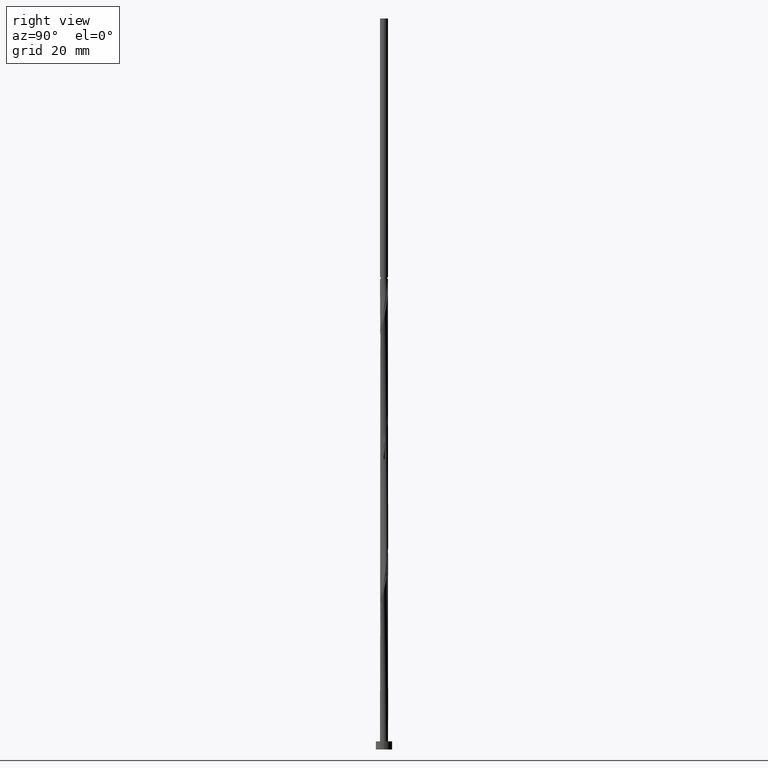
[diagram: clean part render]
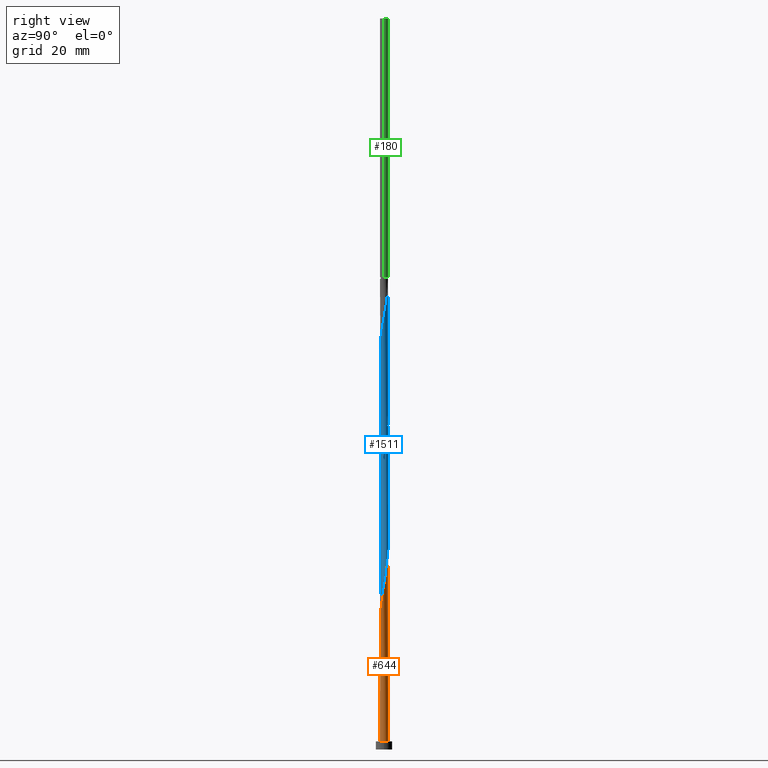
[diagram: same view with three faces highlighted in distinct colors, each labeled with its STEP entity id]
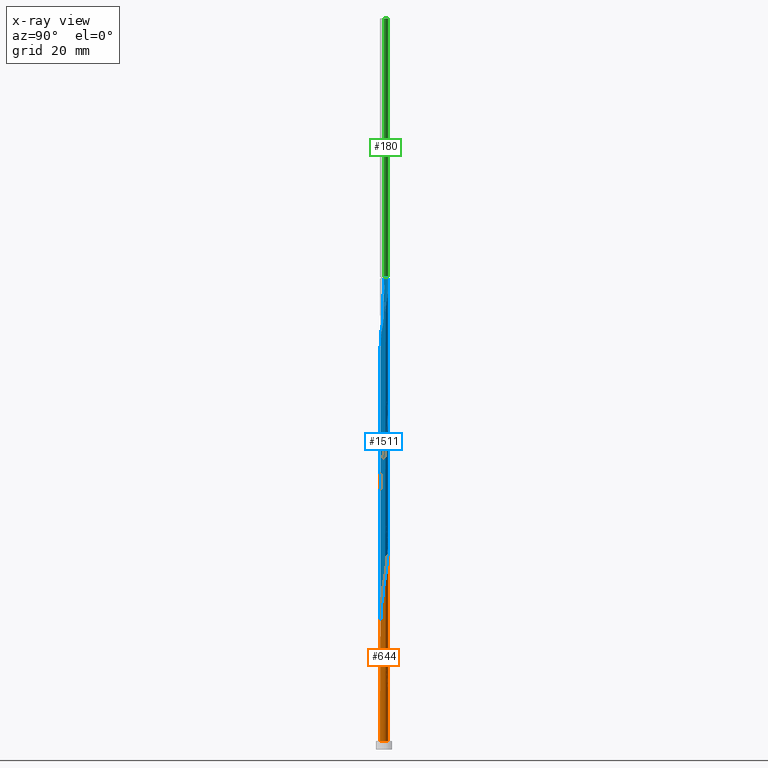
[diagram: x-ray of the same camera — body ghosted, the three highlighted faces saturated]
A machine part, right view with three faces highlighted in distinct colors.
The next image is the same camera in x-ray (body ghosted, the three faces saturated) — at least one of them is partly hidden behind the body in this view.
Their STEP definitions:

[orange] entity #644 — the highlighted cylindrical surface (bore or boss wall) has radius 1 mm, axis along (-0, -0, -1).
#4 = AXIS2_PLACEMENT_3D ( 'NONE', #460, #165, #1165 ) ;
#9 = CARTESIAN_POINT ( 'NONE',  ( -0.6623368793961417200, 0.7492061519980892648, 84.69214483459323617 ) ) ;
#19 = DIRECTION ( 'NONE',  ( -0.000000000000000000, -0.000000000000000000, -1.000000000000000000 ) ) ;
#28 = CARTESIAN_POINT ( 'NONE',  ( -0.8336771183575206745, 0.5522521727681147796, 52.74770039014880041 ) ) ;
#35 = CARTESIAN_POINT ( 'NONE',  ( -0.9981116494354763669, 0.06142585173358004053, 55.52547816792657898 ) ) ;
#41 = CARTESIAN_POINT ( 'NONE',  ( -0.1928297432528356115, 0.9900247826383176131, 17.33103372348212901 ) ) ;
#43 = CARTESIAN_POINT ( 'NONE',  ( 0.7492061519980898199, 0.6623368793961410539, 76.35881150125993599 ) ) ;
#74 = EDGE_CURVE ( 'NONE', #446, #758, #1446, .T. ) ;
#86 = ORIENTED_EDGE ( 'NONE', *, *, #74, .T. ) ;
#93 = CARTESIAN_POINT ( 'NONE',  ( -0.3176631206038603161, -0.9482036394194132134, 29.13658927903768614 ) ) ;
#99 = CARTESIAN_POINT ( 'NONE',  ( 0.06997803978567550265, -1.006198516232635232, 31.21992261237101474 ) ) ;
#107 = CARTESIAN_POINT ( 'NONE',  ( 0.7609717405145317581, -0.6620078475813455654, 35.38658927903767193 ) ) ;
#121 = CARTESIAN_POINT ( 'NONE',  ( 0.9063824962005084807, -0.4424964979548843269, 36.77547816792658608 ) ) ;
#130 = CARTESIAN_POINT ( 'NONE',  ( -0.1989974874213238099, 0.9800000000000015365, 81.91436705681547892 ) ) ;
#134 = CARTESIAN_POINT ( 'NONE',  ( -1.000000000000001332, 0.03074195165767408186, 22.35430338024391617 ) ) ;
#135 = CARTESIAN_POINT ( 'NONE',  ( -1.000000000000001554, 0.03074195165767389104, 89.02097004691059112 ) ) ;
#148 = CARTESIAN_POINT ( 'NONE',  ( -0.8364044564148330752, -0.5637020182777509048, 58.99770039014879330 ) ) ;
#155 = CARTESIAN_POINT ( 'NONE',  ( 0.9900247826383176131, -0.1928297432528361388, 71.49770039014879330 ) ) ;
#165 = DIRECTION ( 'NONE',  ( 0.000000000000000000, 0.000000000000000000, 1.000000000000000000 ) ) ;
#174 = ORIENTED_EDGE ( 'NONE', *, *, #845, .F. ) ;
#190 = CARTESIAN_POINT ( 'NONE',  ( 0.000000000000000000, 0.000000000000000000, 179.0000000000000000 ) ) ;
#206 = CARTESIAN_POINT ( 'NONE',  ( -1.000000000000001554, -2.990756888724011447E-16, 22.51746706827206879 ) ) ;
#207 = CARTESIAN_POINT ( 'NONE',  ( -1.000000000000001554, 3.364601499814512755E-17, 89.18413373493874019 ) ) ;
#213 = EDGE_CURVE ( 'NONE', #1442, #1294, #1134, .T. ) ;
#215 = CARTESIAN_POINT ( 'NONE',  ( 0.6623368793961414980, -0.7492061519980895978, 34.69214483459325038 ) ) ;
#228 = CARTESIAN_POINT ( 'NONE',  ( 0.9482036394194132134, -0.3176631206038603716, 37.46992261237102895 ) ) ;
#236 = CARTESIAN_POINT ( 'NONE',  ( -0.06997803978567486427, 1.006198516232635232, 47.88658927903767903 ) ) ;
#244 = CARTESIAN_POINT ( 'NONE',  ( 0.1928297432528362221, 0.9900247826383176131, 79.83103372348212190 ) ) ;
#252 = CARTESIAN_POINT ( 'NONE',  ( -0.4458594766673616427, 0.8951029700911005138, 16.63658927903767903 ) ) ;
#253 = CARTESIAN_POINT ( 'NONE',  ( -1.000000000000001332, 0.1005037815259216399, 24.11117400950291056 ) ) ;
#256 = CARTESIAN_POINT ( 'NONE',  ( -0.9981116494354763669, 0.06142585173358004053, 88.85881150125990757 ) ) ;
#258 = CARTESIAN_POINT ( 'NONE',  ( -1.000000000000000000, 0.000000000000000000, 179.0000000000000000 ) ) ;
#264 = CARTESIAN_POINT ( 'NONE',  ( -0.5637020182777511268, 0.8364044564148328531, 83.99770039014879330 ) ) ;
#270 = CARTESIAN_POINT ( 'NONE',  ( 0.9063824962005084807, -0.4424964979548843269, 70.10881150125992178 ) ) ;
#280 = CARTESIAN_POINT ( 'NONE',  ( 0.5522521727681148906, 0.8336771183575204525, 77.74770039014883594 ) ) ;
#284 = DIRECTION ( 'NONE',  ( 0.000000000000000000, 1.000000000000000000, -3.122502256758252770E-14 ) ) ;
#305 = EDGE_LOOP ( 'NONE', ( #808, #174, #428, #697, #1040, #1278, #545, #86, #817 ) ) ;
#321 = CARTESIAN_POINT ( 'NONE',  ( -0.3176631206038598165, 0.9482036394194133244, 18.02547816792657187 ) ) ;
#322 = LINE ( 'NONE', #943, #598 ) ;
#331 = CYLINDRICAL_SURFACE ( 'NONE', #866, 1.000000000000000000 ) ;
#337 = CARTESIAN_POINT ( 'NONE',  ( -0.8951029700911006248, -0.4458594766673615317, 24.96992261237102895 ) ) ;
#344 = CARTESIAN_POINT ( 'NONE',  ( -0.5522521727681147796, -0.8336771183575206745, 27.74770039014879330 ) ) ;
#361 = CARTESIAN_POINT ( 'NONE',  ( -1.000000000000001554, -0.1005037815259207934, 23.05089343746132968 ) ) ;
#374 = CARTESIAN_POINT ( 'NONE',  ( -0.8336771183575206745, 0.5522521727681147796, 86.08103372348212190 ) ) ;
#379 = EDGE_CURVE ( 'NONE', #1050, #758, #1018, .T. ) ;
#383 = CARTESIAN_POINT ( 'NONE',  ( -0.9900247826383176131, 0.1928297432528356947, 54.83103372348214322 ) ) ;
#391 = CARTESIAN_POINT ( 'NONE',  ( -0.1928297432528356947, -0.9900247826383176131, 63.16436705681546471 ) ) ;
#399 = CARTESIAN_POINT ( 'NONE',  ( -0.8364044564148329641, 0.5637020182777511268, 21.49770039014879330 ) ) ;
#400 = CARTESIAN_POINT ( 'NONE',  ( 0.9800000000000015365, 0.1989974874213238931, 73.58103372348212190 ) ) ;
#425 = DIRECTION ( 'NONE',  ( -0.000000000000000000, -0.000000000000000000, -1.000000000000000000 ) ) ;
#428 = ORIENTED_EDGE ( 'NONE', *, *, #213, .T. ) ;
#446 = VERTEX_POINT ( 'NONE', #995 ) ;
#452 =( BOUNDED_CURVE ( )  B_SPLINE_CURVE ( 2, ( #1541, #998, #252, #748, #630, #1273, #1128, #873, #1008, #759, #1254, #134, #491 ),
 .UNSPECIFIED., .F., .T. ) 
 B_SPLINE_CURVE_WITH_KNOTS ( ( 3, 2, 2, 2, 2, 2, 3 ),
 ( 0.000000000000000000, 0.01041666666666662966, 0.02083333333333337034, 0.03125000000000000000, 0.04166666666666662966, 0.05208333333333337034, 0.05453176698144630852 ),
 .UNSPECIFIED. ) 
 CURVE ( )  GEOMETRIC_REPRESENTATION_ITEM ( )  RATIONAL_B_SPLINE_CURVE ( ( 0.9090909090909258250, 0.9013135103398444148, 0.9090909090909258250, 0.9013135103398444148, 0.9090909090909258250, 0.9013135103398444148, 0.9090909090909258250, 0.9013135103398444148, 0.9090909090909258250, 0.9013135103398444148, 0.9090909090909258250, 0.9072628343904196591, 0.9062941362546461654 ) ) 
 REPRESENTATION_ITEM ( '' )  );
#460 = CARTESIAN_POINT ( 'NONE',  ( 0.000000000000000000, 0.000000000000000000, 2.000000000000000000 ) ) ;
#465 = CARTESIAN_POINT ( 'NONE',  ( 0.6620078475813460095, 0.7609717405145314251, 43.71992261237101474 ) ) ;
#478 = CARTESIAN_POINT ( 'NONE',  ( 0.9800000000000015365, 0.1989974874213238931, 40.24770039014880751 ) ) ;
#485 = CARTESIAN_POINT ( 'NONE',  ( 0.1928297432528362221, 0.9900247826383176131, 46.49770039014880041 ) ) ;
#491 = CARTESIAN_POINT ( 'NONE',  ( -1.000000000000001554, -2.990756888724011447E-16, 22.51746706827206879 ) ) ;
#492 = CARTESIAN_POINT ( 'NONE',  ( 0.8364044564148332972, 0.5637020182777502386, 42.33103372348212190 ) ) ;
#500 = CARTESIAN_POINT ( 'NONE',  ( -0.7609717405145320912, 0.6620078475813454544, 85.38658927903769325 ) ) ;
#501 = EDGE_CURVE ( 'NONE', #1294, #562, #1365, .T. ) ;
#511 = CARTESIAN_POINT ( 'NONE',  ( -0.8951029700911002918, 0.4458594766673616983, 22.19214483459323972 ) ) ;
#513 = CARTESIAN_POINT ( 'NONE',  ( -0.4458594766673616427, 0.8951029700911005138, 49.96992261237102184 ) ) ;
#522 = CARTESIAN_POINT ( 'NONE',  ( -0.9800000000000015365, 0.1989974874213240874, 23.58103372348212545 ) ) ;
#524 = CARTESIAN_POINT ( 'NONE',  ( 0.4458594766673611987, -0.8951029700911006248, 66.63658927903769325 ) ) ;
#530 = CARTESIAN_POINT ( 'NONE',  ( 0.6623368793961414980, -0.7492061519980895978, 68.02547816792659319 ) ) ;
#545 = ORIENTED_EDGE ( 'NONE', *, *, #1615, .F. ) ;
#556 = DIRECTION ( 'NONE',  ( -0.000000000000000000, -0.000000000000000000, -1.000000000000000000 ) ) ;
#562 = VERTEX_POINT ( 'NONE', #1203 ) ;
#585 = CARTESIAN_POINT ( 'NONE',  ( 0.3280169350569719366, -0.9538014837673677304, 32.60881150125991468 ) ) ;
#587 = CARTESIAN_POINT ( 'NONE',  ( -0.06142585173357986705, 0.9981116494354765889, 16.63658927903767548 ) ) ;
#598 = VECTOR ( 'NONE', #556, 1000.000000000000000 ) ;
#599 = CARTESIAN_POINT ( 'NONE',  ( -1.000000000000001554, -2.990756888724011447E-16, 22.51746706827206879 ) ) ;
#604 = CARTESIAN_POINT ( 'NONE',  ( 1.006198516232635232, 0.06997803978567496141, 39.55325594570432202 ) ) ;
#615 = CARTESIAN_POINT ( 'NONE',  ( -0.8364044564148330752, -0.5637020182777509048, 25.66436705681546826 ) ) ;
#625 = CARTESIAN_POINT ( 'NONE',  ( -0.3280169350569720477, 0.9538014837673677304, 82.60881150125989336 ) ) ;
#630 = CARTESIAN_POINT ( 'NONE',  ( -0.6623368793961417200, 0.7492061519980892648, 18.02547816792657898 ) ) ;
#631 = CARTESIAN_POINT ( 'NONE',  ( -0.9538014837673676194, 0.3280169350569723807, 22.88658927903767548 ) ) ;
#634 = CARTESIAN_POINT ( 'NONE',  ( -0.6620078475813455654, -0.7609717405145317581, 60.38658927903769325 ) ) ;
#641 = CARTESIAN_POINT ( 'NONE',  ( -0.7609717405145320912, 0.6620078475813454544, 52.05325594570435754 ) ) ;
#644 = ADVANCED_FACE ( 'NONE', ( #1453 ), #331, .T. ) ;
#650 = CARTESIAN_POINT ( 'NONE',  ( -0.7492061519980892648, -0.6623368793961414980, 59.69214483459324327 ) ) ;
#660 = CARTESIAN_POINT ( 'NONE',  ( -1.006198516232635232, -0.06997803978567576633, 56.21992261237099342 ) ) ;
#697 = ORIENTED_EDGE ( 'NONE', *, *, #501, .T. ) ;
#707 = CARTESIAN_POINT ( 'NONE',  ( 0.1989974874213244482, 0.9800000000000017586, 15.24770039014879153 ) ) ;
#711 = AXIS2_PLACEMENT_3D ( 'NONE', #1561, #1182, #1445 ) ;
#724 = CARTESIAN_POINT ( 'NONE',  ( -0.7492061519980892648, -0.6623368793961414980, 26.35881150125991468 ) ) ;
#733 = CARTESIAN_POINT ( 'NONE',  ( 0.1989974874213238931, -0.9800000000000015365, 31.91436705681546471 ) ) ;
#748 = CARTESIAN_POINT ( 'NONE',  ( -0.5637020182777511268, 0.8364044564148328531, 17.33103372348213256 ) ) ;
#750 = CARTESIAN_POINT ( 'NONE',  ( 0.06142585173358070666, 0.9981116494354763669, 80.52547816792659319 ) ) ;
#754 = AXIS2_PLACEMENT_3D ( 'NONE', #912, #774, #284 ) ;
#758 = VERTEX_POINT ( 'NONE', #707 ) ;
#759 = CARTESIAN_POINT ( 'NONE',  ( -0.9900247826383176131, 0.1928297432528356947, 21.49770039014879686 ) ) ;
#760 = CARTESIAN_POINT ( 'NONE',  ( -0.9482036394194132134, 0.3176631206038600386, 54.13658927903768614 ) ) ;
#768 = CARTESIAN_POINT ( 'NONE',  ( -0.9482036394194132134, 0.3176631206038600386, 87.46992261237103605 ) ) ;
#769 = EDGE_CURVE ( 'NONE', #562, #1294, #1424, .T. ) ;
#774 = DIRECTION ( 'NONE',  ( 1.964448543275007027E-28, -3.035766082959454067E-14, -1.000000000000000000 ) ) ;
#779 = CARTESIAN_POINT ( 'NONE',  ( 0.9981116494354763669, -0.06142585173358065115, 72.19214483459327880 ) ) ;
#785 = CARTESIAN_POINT ( 'NONE',  ( 0.4424964979548844934, 0.9063824962005087027, 78.44214483459323617 ) ) ;
#808 = ORIENTED_EDGE ( 'NONE', *, *, #1088, .F. ) ;
#817 = ORIENTED_EDGE ( 'NONE', *, *, #379, .F. ) ;
#819 = VERTEX_POINT ( 'NONE', #207 ) ;
#845 = EDGE_CURVE ( 'NONE', #1442, #819, #1022, .T. ) ;
#849 = CARTESIAN_POINT ( 'NONE',  ( 0.4458594766673611987, -0.8951029700911006248, 33.30325594570435754 ) ) ;
#866 = AXIS2_PLACEMENT_3D ( 'NONE', #190, #425, #1193 ) ;
#867 = CARTESIAN_POINT ( 'NONE',  ( -0.9800000000000015365, -0.1989974874213240041, 23.58103372348212545 ) ) ;
#873 = CARTESIAN_POINT ( 'NONE',  ( -0.9063824962005088137, 0.4424964979548841604, 20.10881150125989691 ) ) ;
#875 = CARTESIAN_POINT ( 'NONE',  ( -0.4424964979548842714, -0.9063824962005088137, 61.77547816792656477 ) ) ;
#884 = CARTESIAN_POINT ( 'NONE',  ( -0.9063824962005088137, 0.4424964979548841604, 86.77547816792659319 ) ) ;
#893 = CARTESIAN_POINT ( 'NONE',  ( 0.9482036394194132134, -0.3176631206038603716, 70.80325594570436465 ) ) ;
#901 = CARTESIAN_POINT ( 'NONE',  ( 0.8336771183575202304, -0.5522521727681152237, 69.41436705681547892 ) ) ;
#908 = CARTESIAN_POINT ( 'NONE',  ( 0.8364044564148332972, 0.5637020182777502386, 75.66436705681545050 ) ) ;
#912 = CARTESIAN_POINT ( 'NONE',  ( 0.000000000000000000, 0.000000000000000000, 15.24770039014883238 ) ) ;
#937 = VECTOR ( 'NONE', #19, 1000.000000000000000 ) ;
#943 = CARTESIAN_POINT ( 'NONE',  ( -1.000000000000000000, 0.000000000000000000, 179.0000000000000000 ) ) ;
#964 = CARTESIAN_POINT ( 'NONE',  ( -0.4424964979548842714, -0.9063824962005088137, 28.44214483459324683 ) ) ;
#969 = CARTESIAN_POINT ( 'NONE',  ( -0.9538014837673677304, -0.3280169350569719366, 24.27547816792656121 ) ) ;
#974 = CARTESIAN_POINT ( 'NONE',  ( 0.5522521727681148906, 0.8336771183575204525, 44.41436705681546471 ) ) ;
#983 = CARTESIAN_POINT ( 'NONE',  ( 0.06142585173358070666, 0.9981116494354763669, 47.19214483459324327 ) ) ;
#995 = CARTESIAN_POINT ( 'NONE',  ( -0.1989974874213238931, 0.9800000000000015365, 15.24770039014879153 ) ) ;
#998 = CARTESIAN_POINT ( 'NONE',  ( -0.3280169350569720477, 0.9538014837673677304, 15.94214483459323262 ) ) ;
#999 = CARTESIAN_POINT ( 'NONE',  ( -1.000000000000001554, 6.205820544102393468E-16, 24.64460037869219278 ) ) ;
#1001 = CARTESIAN_POINT ( 'NONE',  ( 0.1989974874213238931, -0.9800000000000015365, 65.24770039014880751 ) ) ;
#1008 = CARTESIAN_POINT ( 'NONE',  ( -0.9482036394194132134, 0.3176631206038600386, 20.80325594570435754 ) ) ;
#1011 = CARTESIAN_POINT ( 'NONE',  ( -0.3280169350569720477, 0.9538014837673677304, 49.27547816792657898 ) ) ;
#1016 = CARTESIAN_POINT ( 'NONE',  ( 0.5637020182777502386, -0.8364044564148332972, 67.33103372348210769 ) ) ;
#1018 =( BOUNDED_CURVE ( )  B_SPLINE_CURVE ( 2, ( #999, #253, #522, #631, #511, #399, #1116, #1028, #1084, #1605, #321, #41, #587, #1057, #1503 ),
 .UNSPECIFIED., .F., .T. ) 
 B_SPLINE_CURVE_WITH_KNOTS ( ( 3, 2, 2, 2, 2, 2, 2, 3 ),
 ( 0.9295317669814463502, 0.9375000000000000000, 0.9479166666666666297, 0.9583333333333333703, 0.9687500000000000000, 0.9791666666666666297, 0.9895833333333333703, 1.000000000000000000 ),
 .UNSPECIFIED. ) 
 CURVE ( )  GEOMETRIC_REPRESENTATION_ITEM ( )  RATIONAL_B_SPLINE_CURVE ( ( 0.9062941362546362845, 0.9031415850403408108, 0.9090909090909159440, 0.9013135103398346448, 0.9090909090909159440, 0.9013135103398346448, 0.9090909090909159440, 0.9013135103398346448, 0.9090909090909159440, 0.9013135103398346448, 0.9090909090909159440, 0.9013135103398346448, 0.9090909090909159440, 0.9013135103398346448, 0.9090909090909159440 ) ) 
 REPRESENTATION_ITEM ( '' )  );
#1022 =( BOUNDED_CURVE ( )  B_SPLINE_CURVE ( 2, ( #599, #361, #867, #969, #337, #615, #724, #1484, #344, #964, #93, #1223, #1618, #99, #733, #585, #849, #1345, #215, #107, #1100, #121, #228, #1631, #1367, #604, #478, #1339, #1089, #492, #1232, #465, #974, #1479, #1623, #485, #983, #236, #1117, #1011, #513, #1528, #1286, #641, #28, #1536, #760, #383, #35, #660, #1141, #1146, #1544, #148, #650, #634, #1033, #875, #1154, #391, #1550, #1404, #1001, #1374, #524, #1016, #530, #1275, #901, #270, #893, #155, #779, #1030, #400, #1257, #1396, #908, #43, #1416, #280, #785, #1519, #244, #750, #1246, #130, #625, #1123, #264, #9, #500, #374, #884, #768, #1387, #256, #135, #1130 ),
 .UNSPECIFIED., .F., .T. ) 
 B_SPLINE_CURVE_WITH_KNOTS ( ( 3, 2, 2, 2, 2, 2, 2, 2, 2, 2, 2, 2, 2, 2, 2, 2, 2, 2, 2, 2, 2, 2, 2, 2, 2, 2, 2, 2, 2, 2, 2, 2, 2, 2, 2, 2, 2, 2, 2, 2, 2, 2, 2, 2, 2, 2, 2, 2, 2, 3 ),
 ( 0.05453176698144630852, 0.06250000000000000000, 0.07291666666666662966, 0.08333333333333337034, 0.09375000000000000000, 0.1041666666666666297, 0.1145833333333333703, 0.1250000000000000000, 0.1354166666666666297, 0.1458333333333333703, 0.1562500000000000000, 0.1666666666666666297, 0.1770833333333333703, 0.1875000000000000000, 0.1979166666666666297, 0.2083333333333333703, 0.2187500000000000000, 0.2291666666666666297, 0.2395833333333333703, 0.2500000000000000000, 0.2604166666666666297, 0.2708333333333333703, 0.2812500000000000000, 0.2916666666666666297, 0.3020833333333333703, 0.3125000000000000000, 0.3229166666666666297, 0.3333333333333333703, 0.3437500000000000000, 0.3541666666666666297, 0.3645833333333333703, 0.3750000000000000000, 0.3854166666666666297, 0.3958333333333333703, 0.4062500000000000000, 0.4166666666666666297, 0.4270833333333333703, 0.4375000000000000000, 0.4479166666666666297, 0.4583333333333333703, 0.4687500000000000000, 0.4791666666666666297, 0.4895833333333333703, 0.5000000000000000000, 0.5104166666666667407, 0.5208333333333332593, 0.5312500000000000000, 0.5416666666666667407, 0.5520833333333332593, 0.5545317669814462391 ),
 .UNSPECIFIED. ) 
 CURVE ( )  GEOMETRIC_REPRESENTATION_ITEM ( )  RATIONAL_B_SPLINE_CURVE ( ( 0.9062941362546461654, 0.9031415850403505807, 0.9090909090909258250, 0.9013135103398444148, 0.9090909090909258250, 0.9013135103398444148, 0.9090909090909258250, 0.9013135103398444148, 0.9090909090909258250, 0.9013135103398444148, 0.9090909090909258250, 0.9013135103398444148, 0.9090909090909258250, 0.9013135103398444148, 0.9090909090909258250, 0.9013135103398444148, 0.9090909090909258250, 0.9013135103398444148, 0.9090909090909258250, 0.9013135103398444148, 0.9090909090909258250, 0.9013135103398444148, 0.9090909090909258250, 0.9013135103398444148, 0.9090909090909258250, 0.9013135103398444148, 0.9090909090909258250, 0.9013135103398444148, 0.9090909090909258250, 0.9013135103398444148, 0.9090909090909258250, 0.9013135103398444148, 0.9090909090909258250, 0.9013135103398444148, 0.9090909090909258250, 0.9013135103398444148, 0.9090909090909258250, 0.9013135103398444148, 0.9090909090909258250, 0.9013135103398444148, 0.9090909090909258250, 0.9013135103398444148, 0.9090909090909258250, 0.9013135103398444148, 0.9090909090909258250, 0.9013135103398444148, 0.9090909090909258250, 0.9013135103398444148, 0.9090909090909258250, 0.9013135103398444148, 0.9090909090909258250, 0.9013135103398444148, 0.9090909090909258250, 0.9013135103398444148, 0.9090909090909258250, 0.9013135103398444148, 0.9090909090909258250, 0.9013135103398444148, 0.9090909090909258250, 0.9013135103398444148, 0.9090909090909258250, 0.9013135103398444148, 0.9090909090909258250, 0.9013135103398444148, 0.9090909090909258250, 0.9013135103398444148, 0.9090909090909258250, 0.9013135103398444148, 0.9090909090909258250, 0.9013135103398444148, 0.9090909090909258250, 0.9013135103398444148, 0.9090909090909258250, 0.9013135103398444148, 0.9090909090909258250, 0.9013135103398444148, 0.9090909090909258250, 0.9013135103398444148, 0.9090909090909258250, 0.9013135103398444148, 0.9090909090909258250, 0.9013135103398444148, 0.9090909090909258250, 0.9013135103398444148, 0.9090909090909258250, 0.9013135103398444148, 0.9090909090909258250, 0.9013135103398444148, 0.9090909090909258250, 0.9013135103398444148, 0.9090909090909258250, 0.9013135103398444148, 0.9090909090909258250, 0.9013135103398444148, 0.9090909090909258250, 0.9013135103398444148, 0.9090909090909258250, 0.9072628343904196591, 0.9062941362546462765 ) ) 
 REPRESENTATION_ITEM ( '' )  );
#1028 = CARTESIAN_POINT ( 'NONE',  ( -0.6620078475813452323, 0.7609717405145320912, 20.10881150125989336 ) ) ;
#1030 = CARTESIAN_POINT ( 'NONE',  ( 1.006198516232635232, 0.06997803978567496141, 72.88658927903769325 ) ) ;
#1033 = CARTESIAN_POINT ( 'NONE',  ( -0.5522521727681147796, -0.8336771183575206745, 61.08103372348214322 ) ) ;
#1040 = ORIENTED_EDGE ( 'NONE', *, *, #769, .T. ) ;
#1050 = VERTEX_POINT ( 'NONE', #1079 ) ;
#1057 = CARTESIAN_POINT ( 'NONE',  ( 0.06997803978567590510, 1.006198516232635010, 15.94214483459322906 ) ) ;
#1079 = CARTESIAN_POINT ( 'NONE',  ( -1.000000000000001554, 6.205820544102392482E-16, 24.64460037869219278 ) ) ;
#1084 = CARTESIAN_POINT ( 'NONE',  ( -0.5522521727681148906, 0.8336771183575207855, 19.41436705681545760 ) ) ;
#1088 = EDGE_CURVE ( 'NONE', #819, #1050, #322, .T. ) ;
#1089 = CARTESIAN_POINT ( 'NONE',  ( 0.8951029700911006248, 0.4458594766673611987, 41.63658927903768614 ) ) ;
#1100 = CARTESIAN_POINT ( 'NONE',  ( 0.8336771183575202304, -0.5522521727681152237, 36.08103372348214322 ) ) ;
#1116 = CARTESIAN_POINT ( 'NONE',  ( -0.7492061519980892648, 0.6623368793961417200, 20.80325594570435044 ) ) ;
#1117 = CARTESIAN_POINT ( 'NONE',  ( -0.1989974874213238099, 0.9800000000000015365, 48.58103372348213611 ) ) ;
#1123 = CARTESIAN_POINT ( 'NONE',  ( -0.4458594766673616427, 0.8951029700911005138, 83.30325594570435044 ) ) ;
#1128 = CARTESIAN_POINT ( 'NONE',  ( -0.8336771183575206745, 0.5522521727681147796, 19.41436705681545760 ) ) ;
#1130 = CARTESIAN_POINT ( 'NONE',  ( -1.000000000000001554, 3.364601499814512755E-17, 89.18413373493874019 ) ) ;
#1134 = LINE ( 'NONE', #258, #937 ) ;
#1141 = CARTESIAN_POINT ( 'NONE',  ( -0.9800000000000015365, -0.1989974874213240041, 56.91436705681547181 ) ) ;
#1146 = CARTESIAN_POINT ( 'NONE',  ( -0.9538014837673677304, -0.3280169350569719366, 57.60881150125990757 ) ) ;
#1154 = CARTESIAN_POINT ( 'NONE',  ( -0.3176631206038603161, -0.9482036394194132134, 62.46992261237102895 ) ) ;
#1165 = DIRECTION ( 'NONE',  ( 1.000000000000000000, 0.000000000000000000, 0.000000000000000000 ) ) ;
#1182 = DIRECTION ( 'NONE',  ( 0.000000000000000000, 0.000000000000000000, 1.000000000000000000 ) ) ;
#1193 = DIRECTION ( 'NONE',  ( -1.000000000000000000, 0.000000000000000000, 0.000000000000000000 ) ) ;
#1203 = CARTESIAN_POINT ( 'NONE',  ( 1.000000000000000000, 0.000000000000000000, 2.000000000000000000 ) ) ;
#1223 = CARTESIAN_POINT ( 'NONE',  ( -0.1928297432528356947, -0.9900247826383176131, 29.83103372348212901 ) ) ;
#1232 = CARTESIAN_POINT ( 'NONE',  ( 0.7492061519980898199, 0.6623368793961410539, 43.02547816792657187 ) ) ;
#1246 = CARTESIAN_POINT ( 'NONE',  ( -0.06997803978567486427, 1.006198516232635232, 81.21992261237100763 ) ) ;
#1254 = CARTESIAN_POINT ( 'NONE',  ( -0.9981116494354763669, 0.06142585173358004053, 22.19214483459324683 ) ) ;
#1257 = CARTESIAN_POINT ( 'NONE',  ( 0.9538014837673677304, 0.3280169350569718256, 74.27547816792657898 ) ) ;
#1273 = CARTESIAN_POINT ( 'NONE',  ( -0.7609717405145320912, 0.6620078475813454544, 18.71992261237101474 ) ) ;
#1275 = CARTESIAN_POINT ( 'NONE',  ( 0.7609717405145317581, -0.6620078475813455654, 68.71992261237103605 ) ) ;
#1278 = ORIENTED_EDGE ( 'NONE', *, *, #213, .F. ) ;
#1286 = CARTESIAN_POINT ( 'NONE',  ( -0.6623368793961417200, 0.7492061519980892648, 51.35881150125992178 ) ) ;
#1294 = VERTEX_POINT ( 'NONE', #1610 ) ;
#1339 = CARTESIAN_POINT ( 'NONE',  ( 0.9538014837673677304, 0.3280169350569718256, 40.94214483459323617 ) ) ;
#1345 = CARTESIAN_POINT ( 'NONE',  ( 0.5637020182777502386, -0.8364044564148332972, 33.99770039014878620 ) ) ;
#1365 = CIRCLE ( 'NONE', #711, 1.000000000000000000 ) ;
#1367 = CARTESIAN_POINT ( 'NONE',  ( 0.9981116494354763669, -0.06142585173358065115, 38.85881150125992178 ) ) ;
#1374 = CARTESIAN_POINT ( 'NONE',  ( 0.3280169350569719366, -0.9538014837673677304, 65.94214483459322196 ) ) ;
#1387 = CARTESIAN_POINT ( 'NONE',  ( -0.9900247826383176131, 0.1928297432528356947, 88.16436705681545050 ) ) ;
#1396 = CARTESIAN_POINT ( 'NONE',  ( 0.8951029700911006248, 0.4458594766673611987, 74.96992261237102184 ) ) ;
#1404 = CARTESIAN_POINT ( 'NONE',  ( 0.06997803978567550265, -1.006198516232635232, 64.55325594570435044 ) ) ;
#1416 = CARTESIAN_POINT ( 'NONE',  ( 0.6620078475813460095, 0.7609717405145314251, 77.05325594570433623 ) ) ;
#1424 = CIRCLE ( 'NONE', #4, 1.000000000000000000 ) ;
#1442 = VERTEX_POINT ( 'NONE', #206 ) ;
#1445 = DIRECTION ( 'NONE',  ( 1.000000000000000000, 0.000000000000000000, 0.000000000000000000 ) ) ;
#1446 = CIRCLE ( 'NONE', #754, 1.000000000000000000 ) ;
#1453 = FACE_OUTER_BOUND ( 'NONE', #305, .T. ) ;
#1479 = CARTESIAN_POINT ( 'NONE',  ( 0.4424964979548844934, 0.9063824962005087027, 45.10881150125990757 ) ) ;
#1484 = CARTESIAN_POINT ( 'NONE',  ( -0.6620078475813455654, -0.7609717405145317581, 27.05325594570433978 ) ) ;
#1503 = CARTESIAN_POINT ( 'NONE',  ( 0.1989974874213244482, 0.9800000000000017586, 15.24770039014879330 ) ) ;
#1519 = CARTESIAN_POINT ( 'NONE',  ( 0.3176631206038603716, 0.9482036394194129914, 79.13658927903772167 ) ) ;
#1528 = CARTESIAN_POINT ( 'NONE',  ( -0.5637020182777511268, 0.8364044564148328531, 50.66436705681545050 ) ) ;
#1536 = CARTESIAN_POINT ( 'NONE',  ( -0.9063824962005088137, 0.4424964979548841604, 53.44214483459322906 ) ) ;
#1541 = CARTESIAN_POINT ( 'NONE',  ( -0.1989974874213238931, 0.9800000000000015365, 15.24770039014879153 ) ) ;
#1544 = CARTESIAN_POINT ( 'NONE',  ( -0.8951029700911006248, -0.4458594766673615317, 58.30325594570434333 ) ) ;
#1550 = CARTESIAN_POINT ( 'NONE',  ( -0.06142585173358009604, -0.9981116494354763669, 63.85881150125992178 ) ) ;
#1561 = CARTESIAN_POINT ( 'NONE',  ( 0.000000000000000000, 0.000000000000000000, 2.000000000000000000 ) ) ;
#1605 = CARTESIAN_POINT ( 'NONE',  ( -0.4424964979548839938, 0.9063824962005090358, 18.71992261237100763 ) ) ;
#1610 = CARTESIAN_POINT ( 'NONE',  ( -1.000000000000000000, 0.000000000000000000, 2.000000000000000000 ) ) ;
#1615 = EDGE_CURVE ( 'NONE', #446, #1442, #452, .T. ) ;
#1618 = CARTESIAN_POINT ( 'NONE',  ( -0.06142585173358009604, -0.9981116494354763669, 30.52547816792657542 ) ) ;
#1623 = CARTESIAN_POINT ( 'NONE',  ( 0.3176631206038603716, 0.9482036394194129914, 45.80325594570435754 ) ) ;
#1631 = CARTESIAN_POINT ( 'NONE',  ( 0.9900247826383176131, -0.1928297432528361388, 38.16436705681546471 ) ) ;

[blue] entity #1511 — the highlighted cylindrical surface (bore or boss wall) has radius 1 mm, axis along (-0, -0, -1).
#11 = CARTESIAN_POINT ( 'NONE',  ( 0.4424964979548838273, -0.9063824962005091468, 35.38658927903767193 ) ) ;
#18 = CARTESIAN_POINT ( 'NONE',  ( -0.8336771183575206745, -0.5522521727681148906, 27.74770039014878975 ) ) ;
#30 = CARTESIAN_POINT ( 'NONE',  ( -0.9981116494354765889, -0.06142585173357974215, 24.96992261237102184 ) ) ;
#38 = CARTESIAN_POINT ( 'NONE',  ( -0.1928297432528356115, 0.9900247826383176131, 50.66436705681545050 ) ) ;
#44 = ORIENTED_EDGE ( 'NONE', *, *, #797, .F. ) ;
#45 = CARTESIAN_POINT ( 'NONE',  ( -0.4458594766673618093, -0.8951029700911002918, 63.85881150125990757 ) ) ;
#50 = CARTESIAN_POINT ( 'NONE',  ( -0.5522521727681147796, -0.8336771183575206745, 94.41436705681547892 ) ) ;
#52 = CIRCLE ( 'NONE', #1386, 0.9999999999999978906 ) ;
#69 = CARTESIAN_POINT ( 'NONE',  ( -0.8951029700911006248, -0.4458594766673615317, 91.63658927903769325 ) ) ;
#80 = CARTESIAN_POINT ( 'NONE',  ( 0.9800000000000015365, 0.1989974874213238931, 106.9143670568154789 ) ) ;
#109 = CARTESIAN_POINT ( 'NONE',  ( 1.000000000000001110, -0.1005037815259231387, 74.11117400950291767 ) ) ;
#113 = CARTESIAN_POINT ( 'NONE',  ( 0.7609717405145325353, 0.6620078475813446772, 78.44214483459320775 ) ) ;
#120 = FACE_OUTER_BOUND ( 'NONE', #1221, .T. ) ;
#136 = EDGE_CURVE ( 'NONE', #1300, #518, #52, .T. ) ;
#137 = CARTESIAN_POINT ( 'NONE',  ( -0.1989974874213241707, -0.9800000000000015365, 31.91436705681546115 ) ) ;
#143 = CARTESIAN_POINT ( 'NONE',  ( 0.06142585173357947154, -0.9981116494354765889, 33.30325594570435754 ) ) ;
#151 = CARTESIAN_POINT ( 'NONE',  ( -0.3176631206038598165, 0.9482036394194133244, 51.35881150125991468 ) ) ;
#157 = CARTESIAN_POINT ( 'NONE',  ( -0.7609717405145323132, -0.6620078475813451213, 61.77547816792655766 ) ) ;
#158 = DIRECTION ( 'NONE',  ( -1.000000000000000000, 0.000000000000000000, 0.000000000000000000 ) ) ;
#163 = CARTESIAN_POINT ( 'NONE',  ( 0.4424964979548844934, 0.9063824962005087027, 111.7754781679265790 ) ) ;
#164 = VERTEX_POINT ( 'NONE', #1004 ) ;
#170 = CARTESIAN_POINT ( 'NONE',  ( -0.7492061519980892648, -0.6623368793961414980, 93.02547816792656477 ) ) ;
#171 = CARTESIAN_POINT ( 'NONE',  ( -0.8951029700911002918, 0.4458594766673616983, 88.85881150125989336 ) ) ;
#178 = VECTOR ( 'NONE', #565, 1000.000000000000000 ) ;
#181 = CARTESIAN_POINT ( 'NONE',  ( -0.1989974874213510658, 0.9800000000002734302, 115.2477003901487933 ) ) ;
#189 = CARTESIAN_POINT ( 'NONE',  ( 0.9981116494354763669, -0.06142585173358065115, 105.5254781679265932 ) ) ;
#198 = CARTESIAN_POINT ( 'NONE',  ( -0.3176631206038603161, -0.9482036394194132134, 95.80325594570436465 ) ) ;
#207 = CARTESIAN_POINT ( 'NONE',  ( -1.000000000000001554, 3.364601499814512755E-17, 89.18413373493874019 ) ) ;
#214 = DIRECTION ( 'NONE',  ( -0.000000000000000000, -0.000000000000000000, -1.000000000000000000 ) ) ;
#222 = CARTESIAN_POINT ( 'NONE',  ( 0.8336771183575207855, 0.5522521727681147796, 77.74770039014882173 ) ) ;
#232 = CARTESIAN_POINT ( 'NONE',  ( 0.5522521727681144466, -0.8336771183575207855, 69.41436705681545050 ) ) ;
#247 = DIRECTION ( 'NONE',  ( -0.000000000000000000, -0.000000000000000000, -1.000000000000000000 ) ) ;
#257 = CARTESIAN_POINT ( 'NONE',  ( 0.1928297432528350286, -0.9900247826383176131, 33.99770039014877909 ) ) ;
#265 = CARTESIAN_POINT ( 'NONE',  ( -0.9800000000000015365, 0.1989974874213240874, 56.91436705681547181 ) ) ;
#273 = CARTESIAN_POINT ( 'NONE',  ( 0.1928297432528350286, -0.9900247826383176131, 67.33103372348209348 ) ) ;
#283 = CARTESIAN_POINT ( 'NONE',  ( -0.7492061519980892648, 0.6623368793961417200, 54.13658927903767903 ) ) ;
#293 = CARTESIAN_POINT ( 'NONE',  ( -0.5522521727681148906, 0.8336771183575207855, 52.74770039014880041 ) ) ;
#300 = CARTESIAN_POINT ( 'NONE',  ( -0.9800000000000015365, 0.1989974874213240874, 90.24770039014879330 ) ) ;
#307 = CARTESIAN_POINT ( 'NONE',  ( 0.1989974874213238931, -0.9800000000000015365, 98.58103372348215032 ) ) ;
#317 = CARTESIAN_POINT ( 'NONE',  ( 0.9900247826383176131, -0.1928297432528361388, 104.8310337234820935 ) ) ;
#322 = LINE ( 'NONE', #943, #598 ) ;
#352 = CARTESIAN_POINT ( 'NONE',  ( -0.3176631206038598165, 0.9482036394194133244, 84.69214483459323617 ) ) ;
#366 = CARTESIAN_POINT ( 'NONE',  ( -0.06142585173357986705, 0.9981116494354765889, 83.30325594570436465 ) ) ;
#376 = CARTESIAN_POINT ( 'NONE',  ( 0.6623368793961420531, 0.7492061519980888207, 45.80325594570436465 ) ) ;
#384 = CARTESIAN_POINT ( 'NONE',  ( -0.5637020182777512378, -0.8364044564148329641, 29.83103372348212190 ) ) ;
#392 = CARTESIAN_POINT ( 'NONE',  ( -0.1989974874213241707, -0.9800000000000015365, 65.24770039014880751 ) ) ;
#403 = CARTESIAN_POINT ( 'NONE',  ( 0.9063824962005091468, 0.4424964979548831612, 43.71992261237099342 ) ) ;
#412 = CARTESIAN_POINT ( 'NONE',  ( 0.8364044564148332972, 0.5637020182777502386, 108.9977003901488075 ) ) ;
#415 = CARTESIAN_POINT ( 'NONE',  ( 0.9482036394194133244, 0.3176631206038592614, 43.02547816792656477 ) ) ;
#422 = CARTESIAN_POINT ( 'NONE',  ( 0.06142585173358070666, 0.9981116494354763669, 113.8588115012599360 ) ) ;
#430 = CARTESIAN_POINT ( 'NONE',  ( -0.4424964979548842714, -0.9063824962005088137, 95.10881150125990757 ) ) ;
#432 = CARTESIAN_POINT ( 'NONE',  ( -1.000000000000001554, 6.205820544102393468E-16, 24.64460037869219278 ) ) ;
#439 = ORIENTED_EDGE ( 'NONE', *, *, #1132, .F. ) ;
#440 = CARTESIAN_POINT ( 'NONE',  ( -1.000000000000000000, 0.000000000000000000, 179.0000000000000000 ) ) ;
#448 = LINE ( 'NONE', #440, #178 ) ;
#459 = EDGE_CURVE ( 'NONE', #164, #1050, #859, .T. ) ;
#464 = CARTESIAN_POINT ( 'NONE',  ( 1.000000000000000000, 1.224646799147353207E-16, 179.0000000000000000 ) ) ;
#472 = CARTESIAN_POINT ( 'NONE',  ( 0.9900247826383176131, 0.1928297432528349453, 75.66436705681545050 ) ) ;
#480 = CARTESIAN_POINT ( 'NONE',  ( 0.8364044564148326311, -0.5637020182777513488, 71.49770039014877909 ) ) ;
#502 = CARTESIAN_POINT ( 'NONE',  ( 0.3176631206038595390, -0.9482036394194133244, 34.69214483459323617 ) ) ;
#508 = CARTESIAN_POINT ( 'NONE',  ( -0.9063824962005091468, -0.4424964979548838273, 27.05325594570434333 ) ) ;
#515 = CARTESIAN_POINT ( 'NONE',  ( -0.6620078475813452323, 0.7609717405145320912, 53.44214483459322196 ) ) ;
#518 = VERTEX_POINT ( 'NONE', #181 ) ;
#525 = CARTESIAN_POINT ( 'NONE',  ( 0.4458594766673623089, 0.8951029700911000697, 47.19214483459322906 ) ) ;
#532 = CARTESIAN_POINT ( 'NONE',  ( 0.8951029700911000697, -0.4458594766673623089, 38.85881150125990757 ) ) ;
#539 = CARTESIAN_POINT ( 'NONE',  ( 0.5522521727681148906, 0.8336771183575204525, 111.0810337234821787 ) ) ;
#541 = CARTESIAN_POINT ( 'NONE',  ( -1.000000000000001554, 2.878603505396892227E-16, 91.31126704535886063 ) ) ;
#555 = ORIENTED_EDGE ( 'NONE', *, *, #1103, .F. ) ;
#556 = DIRECTION ( 'NONE',  ( -0.000000000000000000, -0.000000000000000000, -1.000000000000000000 ) ) ;
#565 = DIRECTION ( 'NONE',  ( -0.000000000000000000, -0.000000000000000000, -1.000000000000000000 ) ) ;
#567 = CARTESIAN_POINT ( 'NONE',  ( 1.000000000000000000, 1.224646799147353207E-16, 115.2477003901487933 ) ) ;
#583 = CARTESIAN_POINT ( 'NONE',  ( -0.9999999999999978906, 0.000000000000000000, 115.2477003901487933 ) ) ;
#592 = CARTESIAN_POINT ( 'NONE',  ( 0.3280169350569730469, 0.9538014837673671753, 81.21992261237100763 ) ) ;
#598 = VECTOR ( 'NONE', #556, 1000.000000000000000 ) ;
#600 = CARTESIAN_POINT ( 'NONE',  ( 0.9800000000000015365, -0.1989974874213241707, 73.58103372348212190 ) ) ;
#612 = DIRECTION ( 'NONE',  ( -1.000000000000000000, 0.000000000000000000, 0.000000000000000000 ) ) ;
#627 = CARTESIAN_POINT ( 'NONE',  ( 0.7492061519980890427, -0.6623368793961421641, 37.46992261237102184 ) ) ;
#636 = CARTESIAN_POINT ( 'NONE',  ( -0.4458594766673618093, -0.8951029700911002918, 30.52547816792657542 ) ) ;
#642 = CARTESIAN_POINT ( 'NONE',  ( -0.3280169350569724362, -0.9538014837673676194, 31.21992261237100408 ) ) ;
#653 = CARTESIAN_POINT ( 'NONE',  ( 0.3280169350569730469, 0.9538014837673671753, 47.88658927903767193 ) ) ;
#657 = VERTEX_POINT ( 'NONE', #567 ) ;
#663 = CARTESIAN_POINT ( 'NONE',  ( -0.9981116494354765889, -0.06142585173357974215, 58.30325594570435044 ) ) ;
#682 = CARTESIAN_POINT ( 'NONE',  ( -0.8364044564148329641, 0.5637020182777511268, 88.16436705681545050 ) ) ;
#690 = CARTESIAN_POINT ( 'NONE',  ( 0.8336771183575202304, -0.5522521727681152237, 102.7477003901487933 ) ) ;
#698 = CARTESIAN_POINT ( 'NONE',  ( 0.3280169350569719366, -0.9538014837673677304, 99.27547816792656477 ) ) ;
#705 = CARTESIAN_POINT ( 'NONE',  ( 0.9538014837673677304, 0.3280169350569718256, 107.6088115012599076 ) ) ;
#717 = CARTESIAN_POINT ( 'NONE',  ( 0.6623368793961420531, 0.7492061519980888207, 79.13658927903767903 ) ) ;
#739 = CARTESIAN_POINT ( 'NONE',  ( 0.000000000000000000, 0.000000000000000000, 179.0000000000000000 ) ) ;
#740 = CARTESIAN_POINT ( 'NONE',  ( -0.4424964979548839938, 0.9063824962005090358, 85.38658927903767903 ) ) ;
#762 = CARTESIAN_POINT ( 'NONE',  ( -0.06997803978567619654, -1.006198516232635010, 32.60881150125990047 ) ) ;
#772 = VERTEX_POINT ( 'NONE', #1045 ) ;
#773 = CARTESIAN_POINT ( 'NONE',  ( 0.6620078475813446772, -0.7609717405145322022, 36.77547816792657898 ) ) ;
#781 = CARTESIAN_POINT ( 'NONE',  ( -0.5637020182777512378, -0.8364044564148329641, 63.16436705681546471 ) ) ;
#786 = CARTESIAN_POINT ( 'NONE',  ( -0.3280169350569724362, -0.9538014837673676194, 64.55325594570432202 ) ) ;
#790 = CARTESIAN_POINT ( 'NONE',  ( 0.6620078475813460095, 0.7609717405145314251, 110.3865892790376790 ) ) ;
#793 = CARTESIAN_POINT ( 'NONE',  ( 0.3176631206038595390, -0.9482036394194133244, 68.02547816792657898 ) ) ;
#796 = ORIENTED_EDGE ( 'NONE', *, *, #459, .F. ) ;
#797 = EDGE_CURVE ( 'NONE', #772, #164, #1480, .T. ) ;
#800 = CARTESIAN_POINT ( 'NONE',  ( -0.9800000000000015365, -0.1989974874213240041, 90.24770039014879330 ) ) ;
#810 = CARTESIAN_POINT ( 'NONE',  ( 0.5637020182777502386, -0.8364044564148332972, 100.6643670568154505 ) ) ;
#819 = VERTEX_POINT ( 'NONE', #207 ) ;
#830 = CARTESIAN_POINT ( 'NONE',  ( -1.000000000000001554, 3.364601499814512755E-17, 89.18413373493874019 ) ) ;
#859 =( BOUNDED_CURVE ( )  B_SPLINE_CURVE ( 2, ( #1227, #109, #600, #1101, #1619, #480, #1363, #975, #232, #1037, #793, #273, #1521, #1003, #392, #786, #45, #781, #920, #157, #1545, #1298, #1021, #1406, #663, #1538, #265, #1148, #1279, #896, #283, #515, #293, #1031, #151, #38, #1268, #1554, #904, #653, #525, #1398, #376, #885, #1391, #403, #415, #1156, #1259, #911, #1418, #1288, #532, #1427, #627, #773, #1124, #11, #502, #257, #143, #762, #137, #642, #636, #384, #1133, #1142, #18, #508, #1012, #1529, #30, #933, #432 ),
 .UNSPECIFIED., .F., .T. ) 
 B_SPLINE_CURVE_WITH_KNOTS ( ( 3, 2, 2, 2, 2, 2, 2, 2, 2, 2, 2, 2, 2, 2, 2, 2, 2, 2, 2, 2, 2, 2, 2, 2, 2, 2, 2, 2, 2, 2, 2, 2, 2, 2, 2, 2, 2, 3 ),
 ( 0.5545317669814464612, 0.5625000000000000000, 0.5729166666666666297, 0.5833333333333333703, 0.5937500000000000000, 0.6041666666666666297, 0.6145833333333333703, 0.6250000000000000000, 0.6354166666666666297, 0.6458333333333333703, 0.6562500000000000000, 0.6666666666666666297, 0.6770833333333333703, 0.6875000000000000000, 0.6979166666666666297, 0.7083333333333333703, 0.7187500000000000000, 0.7291666666666666297, 0.7395833333333333703, 0.7500000000000000000, 0.7604166666666666297, 0.7708333333333333703, 0.7812500000000000000, 0.7916666666666666297, 0.8020833333333333703, 0.8125000000000000000, 0.8229166666666666297, 0.8333333333333333703, 0.8437500000000000000, 0.8541666666666666297, 0.8645833333333333703, 0.8750000000000000000, 0.8854166666666666297, 0.8958333333333333703, 0.9062500000000000000, 0.9166666666666666297, 0.9270833333333333703, 0.9295317669814463502 ),
 .UNSPECIFIED. ) 
 CURVE ( )  GEOMETRIC_REPRESENTATION_ITEM ( )  RATIONAL_B_SPLINE_CURVE ( ( 0.9062941362546362845, 0.9031415850403409218, 0.9090909090909159440, 0.9013135103398346448, 0.9090909090909159440, 0.9013135103398346448, 0.9090909090909159440, 0.9013135103398346448, 0.9090909090909159440, 0.9013135103398346448, 0.9090909090909159440, 0.9013135103398346448, 0.9090909090909159440, 0.9013135103398346448, 0.9090909090909159440, 0.9013135103398346448, 0.9090909090909159440, 0.9013135103398346448, 0.9090909090909159440, 0.9013135103398346448, 0.9090909090909159440, 0.9013135103398346448, 0.9090909090909159440, 0.9013135103398346448, 0.9090909090909159440, 0.9013135103398346448, 0.9090909090909159440, 0.9013135103398346448, 0.9090909090909159440, 0.9013135103398346448, 0.9090909090909159440, 0.9013135103398346448, 0.9090909090909159440, 0.9013135103398346448, 0.9090909090909159440, 0.9013135103398346448, 0.9090909090909159440, 0.9013135103398346448, 0.9090909090909159440, 0.9013135103398346448, 0.9090909090909159440, 0.9013135103398346448, 0.9090909090909159440, 0.9013135103398346448, 0.9090909090909159440, 0.9013135103398346448, 0.9090909090909159440, 0.9013135103398346448, 0.9090909090909159440, 0.9013135103398346448, 0.9090909090909159440, 0.9013135103398346448, 0.9090909090909159440, 0.9013135103398346448, 0.9090909090909159440, 0.9013135103398346448, 0.9090909090909159440, 0.9013135103398346448, 0.9090909090909159440, 0.9013135103398346448, 0.9090909090909159440, 0.9013135103398346448, 0.9090909090909159440, 0.9013135103398346448, 0.9090909090909159440, 0.9013135103398346448, 0.9090909090909159440, 0.9013135103398346448, 0.9090909090909159440, 0.9013135103398346448, 0.9090909090909159440, 0.9013135103398346448, 0.9090909090909159440, 0.9072628343904096671, 0.9062941362546362845 ) ) 
 REPRESENTATION_ITEM ( '' )  );
#860 = CARTESIAN_POINT ( 'NONE',  ( 0.06997803978567590510, 1.006198516232635010, 82.60881150125989336 ) ) ;
#885 = CARTESIAN_POINT ( 'NONE',  ( 0.7609717405145325353, 0.6620078475813446772, 45.10881150125989336 ) ) ;
#896 = CARTESIAN_POINT ( 'NONE',  ( -0.8364044564148329641, 0.5637020182777511268, 54.83103372348210769 ) ) ;
#904 = CARTESIAN_POINT ( 'NONE',  ( 0.1989974874213242539, 0.9800000000000015365, 48.58103372348213611 ) ) ;
#911 = CARTESIAN_POINT ( 'NONE',  ( 1.006198516232635010, -0.06997803978567623817, 40.94214483459322196 ) ) ;
#917 = CARTESIAN_POINT ( 'NONE',  ( -1.000000000000001554, -0.1005037815259210293, 89.71756010412799753 ) ) ;
#920 = CARTESIAN_POINT ( 'NONE',  ( -0.6623368793961419421, -0.7492061519980890427, 62.46992261237102184 ) ) ;
#932 = CARTESIAN_POINT ( 'NONE',  ( -0.1928297432528356947, -0.9900247826383176131, 96.49770039014882173 ) ) ;
#933 = CARTESIAN_POINT ( 'NONE',  ( -1.000000000000001776, -0.03074195165767323532, 24.80776406672034895 ) ) ;
#940 = EDGE_CURVE ( 'NONE', #1300, #772, #448, .T. ) ;
#943 = CARTESIAN_POINT ( 'NONE',  ( -1.000000000000000000, 0.000000000000000000, 179.0000000000000000 ) ) ;
#975 = CARTESIAN_POINT ( 'NONE',  ( 0.6620078475813446772, -0.7609717405145322022, 70.10881150125990757 ) ) ;
#977 = AXIS2_PLACEMENT_3D ( 'NONE', #739, #1237, #612 ) ;
#994 = CARTESIAN_POINT ( 'NONE',  ( 1.000000000000001554, -8.448888210645424733E-16, 74.64460037869217501 ) ) ;
#1003 = CARTESIAN_POINT ( 'NONE',  ( -0.06997803978567619654, -1.006198516232635010, 65.94214483459322196 ) ) ;
#1004 = CARTESIAN_POINT ( 'NONE',  ( 1.000000000000001554, -8.448888210645424733E-16, 74.64460037869217501 ) ) ;
#1012 = CARTESIAN_POINT ( 'NONE',  ( -0.9482036394194133244, -0.3176631206038597055, 26.35881150125991113 ) ) ;
#1021 = CARTESIAN_POINT ( 'NONE',  ( -0.9482036394194133244, -0.3176631206038597055, 59.69214483459322906 ) ) ;
#1031 = CARTESIAN_POINT ( 'NONE',  ( -0.4424964979548839938, 0.9063824962005090358, 52.05325594570434333 ) ) ;
#1037 = CARTESIAN_POINT ( 'NONE',  ( 0.4424964979548838273, -0.9063824962005091468, 68.71992261237100763 ) ) ;
#1043 = CARTESIAN_POINT ( 'NONE',  ( 0.3176631206038603716, 0.9482036394194129914, 112.4699226123710361 ) ) ;
#1045 = CARTESIAN_POINT ( 'NONE',  ( -1.000000000000001554, 2.878603505396892227E-16, 91.31126704535886063 ) ) ;
#1050 = VERTEX_POINT ( 'NONE', #1079 ) ;
#1051 = CARTESIAN_POINT ( 'NONE',  ( -0.6620078475813455654, -0.7609717405145317581, 93.71992261237102184 ) ) ;
#1060 = CARTESIAN_POINT ( 'NONE',  ( 0.6623368793961414980, -0.7492061519980895978, 101.3588115012599360 ) ) ;
#1079 = CARTESIAN_POINT ( 'NONE',  ( -1.000000000000001554, 6.205820544102392482E-16, 24.64460037869219278 ) ) ;
#1088 = EDGE_CURVE ( 'NONE', #819, #1050, #322, .T. ) ;
#1101 = CARTESIAN_POINT ( 'NONE',  ( 0.9538014837673671753, -0.3280169350569729358, 72.88658927903765061 ) ) ;
#1103 = EDGE_CURVE ( 'NONE', #819, #518, #1595, .T. ) ;
#1105 = CARTESIAN_POINT ( 'NONE',  ( -0.1928297432528356115, 0.9900247826383176131, 83.99770039014875067 ) ) ;
#1124 = CARTESIAN_POINT ( 'NONE',  ( 0.5522521727681144466, -0.8336771183575207855, 36.08103372348212901 ) ) ;
#1132 = EDGE_CURVE ( 'NONE', #657, #164, #1349, .T. ) ;
#1133 = CARTESIAN_POINT ( 'NONE',  ( -0.6623368793961419421, -0.7492061519980890427, 29.13658927903768969 ) ) ;
#1142 = CARTESIAN_POINT ( 'NONE',  ( -0.7609717405145323132, -0.6620078475813451213, 28.44214483459324327 ) ) ;
#1148 = CARTESIAN_POINT ( 'NONE',  ( -0.9538014837673676194, 0.3280169350569723807, 56.21992261237100053 ) ) ;
#1156 = CARTESIAN_POINT ( 'NONE',  ( 0.9900247826383176131, 0.1928297432528349453, 42.33103372348212190 ) ) ;
#1162 = CARTESIAN_POINT ( 'NONE',  ( 0.06997803978567550265, -1.006198516232635232, 97.88658927903769325 ) ) ;
#1169 = ORIENTED_EDGE ( 'NONE', *, *, #940, .F. ) ;
#1173 = CARTESIAN_POINT ( 'NONE',  ( -0.7492061519980892648, 0.6623368793961417200, 87.46992261237102184 ) ) ;
#1191 = CARTESIAN_POINT ( 'NONE',  ( 1.006198516232635232, 0.06997803978567496141, 106.2199226123710218 ) ) ;
#1202 = CARTESIAN_POINT ( 'NONE',  ( 0.8951029700911006248, 0.4458594766673611987, 108.3032559457043646 ) ) ;
#1209 = CARTESIAN_POINT ( 'NONE',  ( 0.5637020182777513488, 0.8364044564148326311, 79.83103372348212190 ) ) ;
#1216 = CARTESIAN_POINT ( 'NONE',  ( 0.1989974874213242539, 0.9800000000000015365, 81.91436705681547892 ) ) ;
#1221 = EDGE_LOOP ( 'NONE', ( #1169, #1253, #555, #1609, #796, #439, #1467, #44 ) ) ;
#1227 = CARTESIAN_POINT ( 'NONE',  ( 1.000000000000001554, -8.448888210645424733E-16, 74.64460037869217501 ) ) ;
#1237 = DIRECTION ( 'NONE',  ( -0.000000000000000000, -0.000000000000000000, -1.000000000000000000 ) ) ;
#1238 = CARTESIAN_POINT ( 'NONE',  ( -0.5522521727681148906, 0.8336771183575207855, 86.08103372348212190 ) ) ;
#1253 = ORIENTED_EDGE ( 'NONE', *, *, #136, .T. ) ;
#1259 = CARTESIAN_POINT ( 'NONE',  ( 0.9981116494354765889, 0.06142585173357943684, 41.63658927903769325 ) ) ;
#1268 = CARTESIAN_POINT ( 'NONE',  ( -0.06142585173357986705, 0.9981116494354765889, 49.96992261237101474 ) ) ;
#1279 = CARTESIAN_POINT ( 'NONE',  ( -0.8951029700911002918, 0.4458594766673616983, 55.52547816792657898 ) ) ;
#1288 = CARTESIAN_POINT ( 'NONE',  ( 0.9538014837673671753, -0.3280169350569729358, 39.55325594570434333 ) ) ;
#1289 = CARTESIAN_POINT ( 'NONE',  ( 0.000000000000000000, 0.000000000000000000, 115.2477003901487933 ) ) ;
#1298 = CARTESIAN_POINT ( 'NONE',  ( -0.9063824962005091468, -0.4424964979548838273, 60.38658927903767193 ) ) ;
#1300 = VERTEX_POINT ( 'NONE', #583 ) ;
#1304 = CARTESIAN_POINT ( 'NONE',  ( -0.9538014837673677304, -0.3280169350569719366, 90.94214483459325038 ) ) ;
#1305 = CARTESIAN_POINT ( 'NONE',  ( -0.9538014837673676194, 0.3280169350569723807, 89.55325594570430781 ) ) ;
#1313 = CARTESIAN_POINT ( 'NONE',  ( 0.7609717405145317581, -0.6620078475813455654, 102.0532559457043504 ) ) ;
#1323 = CARTESIAN_POINT ( 'NONE',  ( 0.4458594766673611987, -0.8951029700911006248, 99.96992261237103605 ) ) ;
#1330 = CARTESIAN_POINT ( 'NONE',  ( -0.8364044564148330752, -0.5637020182777509048, 92.33103372348213611 ) ) ;
#1349 = LINE ( 'NONE', #464, #1534 ) ;
#1362 = CARTESIAN_POINT ( 'NONE',  ( 0.9482036394194133244, 0.3176631206038592614, 76.35881150125992178 ) ) ;
#1363 = CARTESIAN_POINT ( 'NONE',  ( 0.7492061519980890427, -0.6623368793961421641, 70.80325594570436465 ) ) ;
#1366 = CYLINDRICAL_SURFACE ( 'NONE', #977, 1.000000000000000000 ) ;
#1386 = AXIS2_PLACEMENT_3D ( 'NONE', #1289, #247, #158 ) ;
#1391 = CARTESIAN_POINT ( 'NONE',  ( 0.8336771183575207855, 0.5522521727681147796, 44.41436705681545760 ) ) ;
#1398 = CARTESIAN_POINT ( 'NONE',  ( 0.5637020182777513488, 0.8364044564148326311, 46.49770039014878620 ) ) ;
#1406 = CARTESIAN_POINT ( 'NONE',  ( -0.9900247826383176131, -0.1928297432528353061, 58.99770039014877909 ) ) ;
#1418 = CARTESIAN_POINT ( 'NONE',  ( 0.9800000000000015365, -0.1989974874213241707, 40.24770039014880041 ) ) ;
#1423 = CARTESIAN_POINT ( 'NONE',  ( 0.7492061519980898199, 0.6623368793961410539, 109.6921448345932646 ) ) ;
#1427 = CARTESIAN_POINT ( 'NONE',  ( 0.8364044564148326311, -0.5637020182777513488, 38.16436705681546471 ) ) ;
#1436 = CARTESIAN_POINT ( 'NONE',  ( -1.000000000000001554, 0.1005037815259207934, 90.77784067616957486 ) ) ;
#1443 = CARTESIAN_POINT ( 'NONE',  ( -0.06142585173358009604, -0.9981116494354763669, 97.19214483459323617 ) ) ;
#1451 = CARTESIAN_POINT ( 'NONE',  ( 0.9482036394194132134, -0.3176631206038603716, 104.1365892790376932 ) ) ;
#1467 = ORIENTED_EDGE ( 'NONE', *, *, #1132, .T. ) ;
#1480 =( BOUNDED_CURVE ( )  B_SPLINE_CURVE ( 2, ( #541, #1436, #300, #1305, #171, #682, #1173, #1491, #1238, #740, #352, #1105, #366, #860, #1216, #592, #1601, #1209, #717, #113, #222, #1510, #1362, #472, #1612, #1499, #994 ),
 .UNSPECIFIED., .F., .T. ) 
 B_SPLINE_CURVE_WITH_KNOTS ( ( 3, 2, 2, 2, 2, 2, 2, 2, 2, 2, 2, 2, 2, 3 ),
 ( 0.4295317669814462391, 0.4375000000000000000, 0.4479166666666666852, 0.4583333333333333148, 0.4687500000000000000, 0.4791666666666666852, 0.4895833333333333148, 0.5000000000000000000, 0.5104166666666666297, 0.5208333333333333703, 0.5312500000000000000, 0.5416666666666666297, 0.5520833333333333703, 0.5545317669814464612 ),
 .UNSPECIFIED. ) 
 CURVE ( )  GEOMETRIC_REPRESENTATION_ITEM ( )  RATIONAL_B_SPLINE_CURVE ( ( 0.9062941362546366175, 0.9031415850403408108, 0.9090909090909159440, 0.9013135103398346448, 0.9090909090909159440, 0.9013135103398346448, 0.9090909090909159440, 0.9013135103398346448, 0.9090909090909159440, 0.9013135103398346448, 0.9090909090909159440, 0.9013135103398346448, 0.9090909090909159440, 0.9013135103398346448, 0.9090909090909159440, 0.9013135103398346448, 0.9090909090909159440, 0.9013135103398346448, 0.9090909090909159440, 0.9013135103398346448, 0.9090909090909159440, 0.9013135103398346448, 0.9090909090909159440, 0.9013135103398346448, 0.9090909090909159440, 0.9072628343904096671, 0.9062941362546362845 ) ) 
 REPRESENTATION_ITEM ( '' )  );
#1491 = CARTESIAN_POINT ( 'NONE',  ( -0.6620078475813452323, 0.7609717405145320912, 86.77547816792656477 ) ) ;
#1499 = CARTESIAN_POINT ( 'NONE',  ( 1.000000000000001776, 0.03074195165767158733, 74.80776406672033829 ) ) ;
#1510 = CARTESIAN_POINT ( 'NONE',  ( 0.9063824962005091468, 0.4424964979548831612, 77.05325594570435044 ) ) ;
#1511 = ADVANCED_FACE ( 'NONE', ( #120 ), #1366, .T. ) ;
#1521 = CARTESIAN_POINT ( 'NONE',  ( 0.06142585173357947154, -0.9981116494354765889, 66.63658927903767903 ) ) ;
#1529 = CARTESIAN_POINT ( 'NONE',  ( -0.9900247826383176131, -0.1928297432528353061, 25.66436705681545405 ) ) ;
#1534 = VECTOR ( 'NONE', #214, 1000.000000000000000 ) ;
#1538 = CARTESIAN_POINT ( 'NONE',  ( -1.006198516232635010, 0.06997803978567612715, 57.60881150125990757 ) ) ;
#1545 = CARTESIAN_POINT ( 'NONE',  ( -0.8336771183575206745, -0.5522521727681148906, 61.08103372348213611 ) ) ;
#1554 = CARTESIAN_POINT ( 'NONE',  ( 0.06997803978567590510, 1.006198516232635010, 49.27547816792655766 ) ) ;
#1560 = CARTESIAN_POINT ( 'NONE',  ( 0.1928297432528362221, 0.9900247826383176131, 113.1643670568154363 ) ) ;
#1576 = CARTESIAN_POINT ( 'NONE',  ( 0.9063824962005084807, -0.4424964979548843269, 103.4421448345932362 ) ) ;
#1595 =( BOUNDED_CURVE ( )  B_SPLINE_CURVE ( 2, ( #830, #917, #800, #1304, #69, #1330, #170, #1051, #50, #430, #198, #932, #1443, #1162, #307, #698, #1323, #810, #1060, #1313, #690, #1576, #1451, #317, #189, #1191, #80, #705, #1202, #412, #1423, #790, #539, #163, #1043, #1560, #422, #1599, #1616 ),
 .UNSPECIFIED., .F., .T. ) 
 B_SPLINE_CURVE_WITH_KNOTS ( ( 3, 2, 2, 2, 2, 2, 2, 2, 2, 2, 2, 2, 2, 2, 2, 2, 2, 2, 2, 3 ),
 ( 0.5545317669814462391, 0.5625000000000000000, 0.5729166666666667407, 0.5833333333333332593, 0.5937500000000001110, 0.6041666666666668517, 0.6145833333333333703, 0.6250000000000001110, 0.6354166666666668517, 0.6458333333333334814, 0.6562500000000002220, 0.6666666666666669627, 0.6770833333333334814, 0.6875000000000002220, 0.6979166666666669627, 0.7083333333333334814, 0.7187500000000002220, 0.7291666666666670737, 0.7395833333333335924, 0.7500000000000003331 ),
 .UNSPECIFIED. ) 
 CURVE ( )  GEOMETRIC_REPRESENTATION_ITEM ( )  RATIONAL_B_SPLINE_CURVE ( ( 0.9062941362546462765, 0.9031415850403505807, 0.9090909090909258250, 0.9013135103398444148, 0.9090909090909258250, 0.9013135103398444148, 0.9090909090909258250, 0.9013135103398444148, 0.9090909090909258250, 0.9013135103398444148, 0.9090909090909258250, 0.9013135103398444148, 0.9090909090909258250, 0.9013135103398444148, 0.9090909090909258250, 0.9013135103398444148, 0.9090909090909258250, 0.9013135103398444148, 0.9090909090909258250, 0.9013135103398444148, 0.9090909090909258250, 0.9013135103398444148, 0.9090909090909258250, 0.9013135103398444148, 0.9090909090909258250, 0.9013135103398444148, 0.9090909090909258250, 0.9013135103398444148, 0.9090909090909258250, 0.9013135103398444148, 0.9090909090909258250, 0.9013135103398444148, 0.9090909090909258250, 0.9013135103398444148, 0.9090909090909258250, 0.9013135103398444148, 0.9090909090909258250, 0.9013135103398441927, 0.9090909090909260470 ) ) 
 REPRESENTATION_ITEM ( '' )  );
#1599 = CARTESIAN_POINT ( 'NONE',  ( -0.06997803978567909700, 1.006198516232635232, 114.5532559457043789 ) ) ;
#1601 = CARTESIAN_POINT ( 'NONE',  ( 0.4458594766673623089, 0.8951029700911000697, 80.52547816792655055 ) ) ;
#1609 = ORIENTED_EDGE ( 'NONE', *, *, #1088, .T. ) ;
#1612 = CARTESIAN_POINT ( 'NONE',  ( 0.9981116494354765889, 0.06142585173357943684, 74.96992261237099342 ) ) ;
#1616 = CARTESIAN_POINT ( 'NONE',  ( -0.1989974874213510381, 0.9800000000002734302, 115.2477003901487933 ) ) ;
#1619 = CARTESIAN_POINT ( 'NONE',  ( 0.8951029700911000697, -0.4458594766673623089, 72.19214483459326459 ) ) ;

[green] entity #180 — the highlighted cylindrical surface (edge-blend (fillet) strip) has radius 1 mm, axis along (-0, -0, -1).
#12 = CYLINDRICAL_SURFACE ( 'NONE', #1356, 1.000000000000000000 ) ;
#51 = EDGE_CURVE ( 'NONE', #1168, #177, #1476, .T. ) ;
#68 = EDGE_LOOP ( 'NONE', ( #922, #611, #1575, #421 ) ) ;
#81 = CARTESIAN_POINT ( 'NONE',  ( -0.9999999999999978906, 0.000000000000000000, 115.6477003901487990 ) ) ;
#90 = DIRECTION ( 'NONE',  ( -0.000000000000000000, -0.000000000000000000, -1.000000000000000000 ) ) ;
#177 = VERTEX_POINT ( 'NONE', #1125 ) ;
#180 = ADVANCED_FACE ( 'NONE', ( #1260 ), #12, .T. ) ;
#266 = CARTESIAN_POINT ( 'NONE',  ( 0.000000000000000000, 0.000000000000000000, 179.0000000000000000 ) ) ;
#304 = EDGE_CURVE ( 'NONE', #1168, #1042, #918, .T. ) ;
#396 = CARTESIAN_POINT ( 'NONE',  ( -1.000000000000000000, 0.000000000000000000, 179.0000000000000000 ) ) ;
#404 = DIRECTION ( 'NONE',  ( 0.000000000000000000, 0.000000000000000000, 1.000000000000000000 ) ) ;
#421 = ORIENTED_EDGE ( 'NONE', *, *, #1533, .F. ) ;
#450 = CARTESIAN_POINT ( 'NONE',  ( 0.000000000000000000, 0.000000000000000000, 115.6477003901487990 ) ) ;
#493 = AXIS2_PLACEMENT_3D ( 'NONE', #450, #90, #578 ) ;
#578 = DIRECTION ( 'NONE',  ( -1.000000000000000000, 0.000000000000000000, 0.000000000000000000 ) ) ;
#611 = ORIENTED_EDGE ( 'NONE', *, *, #304, .T. ) ;
#643 = DIRECTION ( 'NONE',  ( -0.000000000000000000, -0.000000000000000000, -1.000000000000000000 ) ) ;
#654 = VERTEX_POINT ( 'NONE', #81 ) ;
#673 = VECTOR ( 'NONE', #1139, 1000.000000000000000 ) ;
#680 = EDGE_CURVE ( 'NONE', #654, #1042, #1017, .T. ) ;
#805 = AXIS2_PLACEMENT_3D ( 'NONE', #266, #404, #1149 ) ;
#886 = CARTESIAN_POINT ( 'NONE',  ( 0.000000000000000000, 0.000000000000000000, 179.0000000000000000 ) ) ;
#918 = LINE ( 'NONE', #1425, #982 ) ;
#922 = ORIENTED_EDGE ( 'NONE', *, *, #51, .F. ) ;
#982 = VECTOR ( 'NONE', #1489, 1000.000000000000000 ) ;
#1017 = CIRCLE ( 'NONE', #493, 0.9999999999999978906 ) ;
#1042 = VERTEX_POINT ( 'NONE', #1069 ) ;
#1069 = CARTESIAN_POINT ( 'NONE',  ( 0.9999999999999978906, 1.224646799147351728E-16, 115.6477003901487990 ) ) ;
#1125 = CARTESIAN_POINT ( 'NONE',  ( -1.000000000000000000, 0.000000000000000000, 179.0000000000000000 ) ) ;
#1139 = DIRECTION ( 'NONE',  ( -0.000000000000000000, -0.000000000000000000, -1.000000000000000000 ) ) ;
#1149 = DIRECTION ( 'NONE',  ( 1.000000000000000000, 0.000000000000000000, 0.000000000000000000 ) ) ;
#1168 = VERTEX_POINT ( 'NONE', #1214 ) ;
#1214 = CARTESIAN_POINT ( 'NONE',  ( 1.000000000000000000, 1.224646799147353207E-16, 179.0000000000000000 ) ) ;
#1260 = FACE_OUTER_BOUND ( 'NONE', #68, .T. ) ;
#1356 = AXIS2_PLACEMENT_3D ( 'NONE', #886, #643, #1392 ) ;
#1392 = DIRECTION ( 'NONE',  ( -1.000000000000000000, 0.000000000000000000, 0.000000000000000000 ) ) ;
#1425 = CARTESIAN_POINT ( 'NONE',  ( 1.000000000000000000, 1.224646799147353207E-16, 179.0000000000000000 ) ) ;
#1476 = CIRCLE ( 'NONE', #805, 1.000000000000000000 ) ;
#1489 = DIRECTION ( 'NONE',  ( -0.000000000000000000, -0.000000000000000000, -1.000000000000000000 ) ) ;
#1533 = EDGE_CURVE ( 'NONE', #177, #654, #1591, .T. ) ;
#1575 = ORIENTED_EDGE ( 'NONE', *, *, #680, .F. ) ;
#1591 = LINE ( 'NONE', #396, #673 ) ;